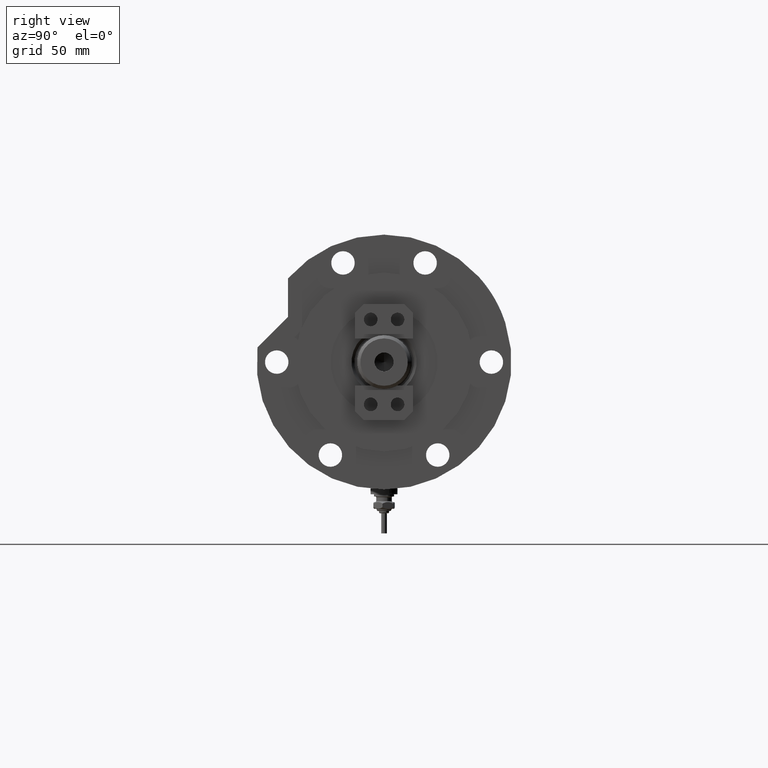
[diagram: clean part render]
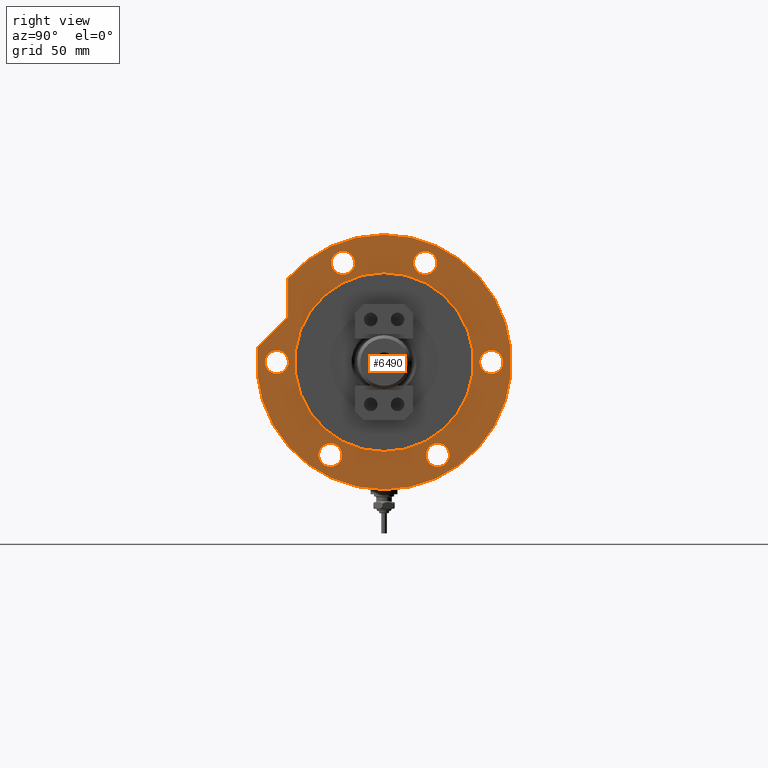
[diagram: same view with one face highlighted and labeled with its STEP entity id]
A machine part, right view. The second image highlights one B-rep face of the part: STEP entity #6490.
In plain terms, the highlighted planar face has unit normal (1, 0, -0).
Its self-contained STEP definition (entity closure, byte-faithful):
#20 = CARTESIAN_POINT ( 'NONE',  ( -57.00000000000000000, 0.000000000000000000, 19.00000000000000000 ) ) ;
#64 = DIRECTION ( 'NONE',  ( 1.000000000000000000, 0.000000000000000000, 0.000000000000000000 ) ) ;
#114 = DIRECTION ( 'NONE',  ( 1.000000000000000000, 0.000000000000000000, 0.000000000000000000 ) ) ;
#204 = FACE_BOUND ( 'NONE', #3351, .T. ) ;
#212 = AXIS2_PLACEMENT_3D ( 'NONE', #4797, #7325, #7237 ) ;
#281 = ORIENTED_EDGE ( 'NONE', *, *, #1066, .F. ) ;
#300 = ORIENTED_EDGE ( 'NONE', *, *, #6311, .T. ) ;
#383 = DIRECTION ( 'NONE',  ( 1.000000000000000000, 0.000000000000000000, 0.000000000000000000 ) ) ;
#440 = EDGE_CURVE ( 'NONE', #6166, #5780, #4897, .T. ) ;
#450 = VERTEX_POINT ( 'NONE', #4670 ) ;
#529 = DIRECTION ( 'NONE',  ( 0.000000000000000000, 0.000000000000000000, 1.000000000000000000 ) ) ;
#599 = AXIS2_PLACEMENT_3D ( 'NONE', #4023, #728, #114 ) ;
#612 = ORIENTED_EDGE ( 'NONE', *, *, #1130, .T. ) ;
#623 = CIRCLE ( 'NONE', #212, 57.00000000000000000 ) ;
#667 = EDGE_LOOP ( 'NONE', ( #959, #2658 ) ) ;
#728 = DIRECTION ( 'NONE',  ( 0.000000000000000000, 0.000000000000000000, 1.000000000000000000 ) ) ;
#868 = PLANE ( 'NONE',  #4383 ) ;
#882 = AXIS2_PLACEMENT_3D ( 'NONE', #4242, #1709, #2931 ) ;
#959 = ORIENTED_EDGE ( 'NONE', *, *, #7911, .F. ) ;
#1066 = EDGE_CURVE ( 'NONE', #2669, #5001, #2988, .T. ) ;
#1130 = EDGE_CURVE ( 'NONE', #1877, #8189, #2176, .T. ) ;
#1172 = EDGE_LOOP ( 'NONE', ( #3552, #5666 ) ) ;
#1185 = DIRECTION ( 'NONE',  ( 0.000000000000000000, 0.000000000000000000, 1.000000000000000000 ) ) ;
#1457 = CARTESIAN_POINT ( 'NONE',  ( 39.09621756054168173, -18.36880475352450048, 19.00000000000000000 ) ) ;
#1484 = CARTESIAN_POINT ( 'NONE',  ( 0.000000000000000000, -48.00000000000000000, 19.00000000000000000 ) ) ;
#1551 = ORIENTED_EDGE ( 'NONE', *, *, #7090, .F. ) ;
#1567 = CARTESIAN_POINT ( 'NONE',  ( -46.81921938165294961, -24.00000000000018829, 19.00000000000000000 ) ) ;
#1598 = CARTESIAN_POINT ( 'NONE',  ( 40.00000000000000000, 4.898587196589413026E-15, 19.00000000000000000 ) ) ;
#1673 = DIRECTION ( 'NONE',  ( 0.000000000000000000, 0.000000000000000000, 1.000000000000000000 ) ) ;
#1683 = CIRCLE ( 'NONE', #8124, 5.249999999999997335 ) ;
#1709 = DIRECTION ( 'NONE',  ( 0.000000000000000000, 0.000000000000000000, 1.000000000000000000 ) ) ;
#1714 = CARTESIAN_POINT ( 'NONE',  ( 0.000000000000000000, 48.00000000000000000, 19.00000000000000000 ) ) ;
#1845 = VERTEX_POINT ( 'NONE', #5744 ) ;
#1877 = VERTEX_POINT ( 'NONE', #5778 ) ;
#1886 = CARTESIAN_POINT ( 'NONE',  ( -5.249999999999998224, 48.00000000000000000, 19.00000000000000000 ) ) ;
#1908 = AXIS2_PLACEMENT_3D ( 'NONE', #1714, #4288, #8148 ) ;
#1947 = AXIS2_PLACEMENT_3D ( 'NONE', #3594, #6147, #383 ) ;
#1959 = ORIENTED_EDGE ( 'NONE', *, *, #5470, .F. ) ;
#1974 = CIRCLE ( 'NONE', #4530, 5.249999999999997335 ) ;
#2028 = CARTESIAN_POINT ( 'NONE',  ( -5.249999999999998224, -48.00000000000000000, 19.00000000000000000 ) ) ;
#2030 = DIRECTION ( 'NONE',  ( 0.000000000000000000, 0.000000000000000000, 1.000000000000000000 ) ) ;
#2106 = VERTEX_POINT ( 'NONE', #2028 ) ;
#2137 = CARTESIAN_POINT ( 'NONE',  ( 57.00000000000000000, 6.980486755139912911E-15, 19.00000000000000000 ) ) ;
#2170 = CARTESIAN_POINT ( 'NONE',  ( 20.20945616129993283, 42.98007820311755012, 19.00000000000000000 ) ) ;
#2176 = CIRCLE ( 'NONE', #3268, 57.00000000000000000 ) ;
#2242 = DIRECTION ( 'NONE',  ( 0.000000000000000000, 0.000000000000000000, 1.000000000000000000 ) ) ;
#2261 = DIRECTION ( 'NONE',  ( 1.000000000000000000, 0.000000000000000000, 0.000000000000000000 ) ) ;
#2270 = CARTESIAN_POINT ( 'NONE',  ( 31.59476718220863845, 31.59476718220895108, 19.00000000000000000 ) ) ;
#2290 = CARTESIAN_POINT ( 'NONE',  ( 49.59621756054168173, -18.36880475352450048, 19.00000000000000000 ) ) ;
#2322 = AXIS2_PLACEMENT_3D ( 'NONE', #3308, #5738, #5860 ) ;
#2495 = CIRCLE ( 'NONE', #3729, 5.249999999999998224 ) ;
#2625 = CIRCLE ( 'NONE', #5453, 40.00000000000000000 ) ;
#2658 = ORIENTED_EDGE ( 'NONE', *, *, #3569, .F. ) ;
#2669 = VERTEX_POINT ( 'NONE', #1886 ) ;
#2769 = FACE_BOUND ( 'NONE', #1172, .T. ) ;
#2813 = VERTEX_POINT ( 'NONE', #2137 ) ;
#2854 = FACE_BOUND ( 'NONE', #3421, .T. ) ;
#2898 = CARTESIAN_POINT ( 'NONE',  ( 44.34621756054168173, -18.36880475352450048, 19.00000000000000000 ) ) ;
#2900 = LINE ( 'NONE', #2270, #5289 ) ;
#2931 = DIRECTION ( 'NONE',  ( 1.000000000000000000, 0.000000000000000000, 0.000000000000000000 ) ) ;
#2950 = CARTESIAN_POINT ( 'NONE',  ( -41.56921938165310593, 23.99999999999990408, 19.00000000000000000 ) ) ;
#2988 = CIRCLE ( 'NONE', #1908, 5.249999999999998224 ) ;
#3023 = CARTESIAN_POINT ( 'NONE',  ( -46.81921938165310593, 23.99999999999990408, 19.00000000000000000 ) ) ;
#3043 = AXIS2_PLACEMENT_3D ( 'NONE', #4399, #1185, #5068 ) ;
#3165 = EDGE_LOOP ( 'NONE', ( #3273, #4970 ) ) ;
#3168 = VECTOR ( 'NONE', #4566, 1000.000000000000000 ) ;
#3268 = AXIS2_PLACEMENT_3D ( 'NONE', #8056, #1673, #4163 ) ;
#3270 = CARTESIAN_POINT ( 'NONE',  ( -41.56921938165294961, -24.00000000000018829, 19.00000000000000000 ) ) ;
#3273 = ORIENTED_EDGE ( 'NONE', *, *, #5595, .F. ) ;
#3308 = CARTESIAN_POINT ( 'NONE',  ( 0.000000000000000000, 0.000000000000000000, 19.00000000000000000 ) ) ;
#3351 = EDGE_LOOP ( 'NONE', ( #281, #6433 ) ) ;
#3421 = EDGE_LOOP ( 'NONE', ( #1551, #6331 ) ) ;
#3445 = CARTESIAN_POINT ( 'NONE',  ( -36.31921938165311303, 23.99999999999990408, 19.00000000000000000 ) ) ;
#3456 = CIRCLE ( 'NONE', #882, 5.249999999999997335 ) ;
#3463 = CIRCLE ( 'NONE', #5049, 5.249999999999998224 ) ;
#3490 = CARTESIAN_POINT ( 'NONE',  ( 0.000000000000000000, 48.00000000000000000, 19.00000000000000000 ) ) ;
#3552 = ORIENTED_EDGE ( 'NONE', *, *, #6624, .F. ) ;
#3556 = DIRECTION ( 'NONE',  ( 1.000000000000000000, 0.000000000000000000, 0.000000000000000000 ) ) ;
#3569 = EDGE_CURVE ( 'NONE', #4433, #1845, #7700, .T. ) ;
#3570 = CIRCLE ( 'NONE', #5708, 5.249999999999997335 ) ;
#3594 = CARTESIAN_POINT ( 'NONE',  ( 0.000000000000000000, -48.00000000000000000, 19.00000000000000000 ) ) ;
#3623 = CARTESIAN_POINT ( 'NONE',  ( 49.59621756054168173, 18.36880475352450048, 19.00000000000000000 ) ) ;
#3729 = AXIS2_PLACEMENT_3D ( 'NONE', #1484, #2030, #5278 ) ;
#3754 = CARTESIAN_POINT ( 'NONE',  ( 0.000000000000000000, 0.000000000000000000, 19.00000000000000000 ) ) ;
#3874 = EDGE_CURVE ( 'NONE', #5780, #6166, #4344, .T. ) ;
#3989 = VERTEX_POINT ( 'NONE', #5565 ) ;
#4016 = DIRECTION ( 'NONE',  ( 0.000000000000000000, 0.000000000000000000, 1.000000000000000000 ) ) ;
#4023 = CARTESIAN_POINT ( 'NONE',  ( 44.34621756054168173, 18.36880475352450048, 19.00000000000000000 ) ) ;
#4063 = DIRECTION ( 'NONE',  ( 0.000000000000000000, 0.000000000000000000, 1.000000000000000000 ) ) ;
#4103 = CARTESIAN_POINT ( 'NONE',  ( 0.000000000000000000, 42.98007820311755012, 19.00000000000000000 ) ) ;
#4158 = DIRECTION ( 'NONE',  ( 1.000000000000000000, 0.000000000000000000, -0.000000000000000000 ) ) ;
#4163 = DIRECTION ( 'NONE',  ( 1.000000000000000000, 0.000000000000000000, 0.000000000000000000 ) ) ;
#4242 = CARTESIAN_POINT ( 'NONE',  ( 44.34621756054168173, -18.36880475352450048, 19.00000000000000000 ) ) ;
#4288 = DIRECTION ( 'NONE',  ( 0.000000000000000000, 0.000000000000000000, 1.000000000000000000 ) ) ;
#4344 = CIRCLE ( 'NONE', #7314, 5.249999999999997335 ) ;
#4383 = AXIS2_PLACEMENT_3D ( 'NONE', #6002, #7366, #4158 ) ;
#4399 = CARTESIAN_POINT ( 'NONE',  ( 44.34621756054168173, 18.36880475352450048, 19.00000000000000000 ) ) ;
#4424 = EDGE_CURVE ( 'NONE', #1877, #4807, #2900, .T. ) ;
#4433 = VERTEX_POINT ( 'NONE', #1598 ) ;
#4530 = AXIS2_PLACEMENT_3D ( 'NONE', #7932, #5465, #2261 ) ;
#4566 = DIRECTION ( 'NONE',  ( 1.000000000000000000, 0.000000000000000000, -0.000000000000000000 ) ) ;
#4629 = DIRECTION ( 'NONE',  ( 1.000000000000000000, 0.000000000000000000, 0.000000000000000000 ) ) ;
#4670 = CARTESIAN_POINT ( 'NONE',  ( 37.43945616129992970, 42.98007820311755012, 19.00000000000000000 ) ) ;
#4703 = FACE_BOUND ( 'NONE', #667, .T. ) ;
#4719 = EDGE_LOOP ( 'NONE', ( #4938, #1959 ) ) ;
#4773 = DIRECTION ( 'NONE',  ( 1.000000000000000000, 0.000000000000000000, 0.000000000000000000 ) ) ;
#4785 = DIRECTION ( 'NONE',  ( 1.000000000000000000, 0.000000000000000000, 0.000000000000000000 ) ) ;
#4791 = AXIS2_PLACEMENT_3D ( 'NONE', #3754, #529, #5124 ) ;
#4795 = FACE_BOUND ( 'NONE', #8024, .T. ) ;
#4797 = CARTESIAN_POINT ( 'NONE',  ( 0.000000000000000000, 0.000000000000000000, 19.00000000000000000 ) ) ;
#4807 = VERTEX_POINT ( 'NONE', #2170 ) ;
#4808 = DIRECTION ( 'NONE',  ( 0.000000000000000000, 0.000000000000000000, 1.000000000000000000 ) ) ;
#4897 = CIRCLE ( 'NONE', #7841, 5.249999999999997335 ) ;
#4938 = ORIENTED_EDGE ( 'NONE', *, *, #6891, .F. ) ;
#4970 = ORIENTED_EDGE ( 'NONE', *, *, #7610, .F. ) ;
#5001 = VERTEX_POINT ( 'NONE', #5582 ) ;
#5049 = AXIS2_PLACEMENT_3D ( 'NONE', #3490, #4016, #4773 ) ;
#5068 = DIRECTION ( 'NONE',  ( 1.000000000000000000, 0.000000000000000000, 0.000000000000000000 ) ) ;
#5124 = DIRECTION ( 'NONE',  ( 1.000000000000000000, 0.000000000000000000, 0.000000000000000000 ) ) ;
#5153 = EDGE_CURVE ( 'NONE', #6277, #6818, #6641, .T. ) ;
#5278 = DIRECTION ( 'NONE',  ( 1.000000000000000000, 0.000000000000000000, 0.000000000000000000 ) ) ;
#5289 = VECTOR ( 'NONE', #5591, 999.9999999999998863 ) ;
#5332 = FACE_OUTER_BOUND ( 'NONE', #6814, .T. ) ;
#5416 = FACE_BOUND ( 'NONE', #3165, .T. ) ;
#5453 = AXIS2_PLACEMENT_3D ( 'NONE', #6716, #4063, #4785 ) ;
#5465 = DIRECTION ( 'NONE',  ( 0.000000000000000000, 0.000000000000000000, 1.000000000000000000 ) ) ;
#5470 = EDGE_CURVE ( 'NONE', #3989, #2106, #8117, .T. ) ;
#5521 = CARTESIAN_POINT ( 'NONE',  ( -41.56921938165310593, 23.99999999999990408, 19.00000000000000000 ) ) ;
#5565 = CARTESIAN_POINT ( 'NONE',  ( 5.249999999999998224, -48.00000000000000000, 19.00000000000000000 ) ) ;
#5582 = CARTESIAN_POINT ( 'NONE',  ( 5.249999999999998224, 48.00000000000000000, 19.00000000000000000 ) ) ;
#5591 = DIRECTION ( 'NONE',  ( 0.7071067811865510144, -0.7071067811865441310, 0.000000000000000000 ) ) ;
#5595 = EDGE_CURVE ( 'NONE', #7327, #7532, #3570, .T. ) ;
#5666 = ORIENTED_EDGE ( 'NONE', *, *, #6079, .F. ) ;
#5708 = AXIS2_PLACEMENT_3D ( 'NONE', #3270, #5779, #64 ) ;
#5738 = DIRECTION ( 'NONE',  ( 0.000000000000000000, 0.000000000000000000, 1.000000000000000000 ) ) ;
#5744 = CARTESIAN_POINT ( 'NONE',  ( -40.00000000000000000, 0.000000000000000000, 19.00000000000000000 ) ) ;
#5778 = CARTESIAN_POINT ( 'NONE',  ( 6.569366352211361004, 56.62016801220598694, 19.00000000000000000 ) ) ;
#5779 = DIRECTION ( 'NONE',  ( 0.000000000000000000, 0.000000000000000000, 1.000000000000000000 ) ) ;
#5780 = VERTEX_POINT ( 'NONE', #3445 ) ;
#5808 = ORIENTED_EDGE ( 'NONE', *, *, #3874, .F. ) ;
#5842 = EDGE_CURVE ( 'NONE', #4807, #450, #7308, .T. ) ;
#5860 = DIRECTION ( 'NONE',  ( 1.000000000000000000, 0.000000000000000000, 0.000000000000000000 ) ) ;
#5885 = ORIENTED_EDGE ( 'NONE', *, *, #4424, .F. ) ;
#5919 = DIRECTION ( 'NONE',  ( 0.000000000000000000, 0.000000000000000000, 1.000000000000000000 ) ) ;
#5985 = CIRCLE ( 'NONE', #4791, 57.00000000000000000 ) ;
#6002 = CARTESIAN_POINT ( 'NONE',  ( 0.000000000000000000, 0.000000000000000000, 19.00000000000000000 ) ) ;
#6008 = ORIENTED_EDGE ( 'NONE', *, *, #7578, .T. ) ;
#6035 = ORIENTED_EDGE ( 'NONE', *, *, #440, .F. ) ;
#6079 = EDGE_CURVE ( 'NONE', #6636, #7531, #1683, .T. ) ;
#6147 = DIRECTION ( 'NONE',  ( 0.000000000000000000, 0.000000000000000000, 1.000000000000000000 ) ) ;
#6166 = VERTEX_POINT ( 'NONE', #3023 ) ;
#6277 = VERTEX_POINT ( 'NONE', #3623 ) ;
#6311 = EDGE_CURVE ( 'NONE', #8189, #2813, #5985, .T. ) ;
#6331 = ORIENTED_EDGE ( 'NONE', *, *, #5153, .F. ) ;
#6433 = ORIENTED_EDGE ( 'NONE', *, *, #8202, .F. ) ;
#6456 = CARTESIAN_POINT ( 'NONE',  ( 39.09621756054168173, 18.36880475352450048, 19.00000000000000000 ) ) ;
#6490 = ADVANCED_FACE ( 'NONE', ( #204, #2854, #2769, #6723, #5416, #4795, #5332, #4703 ), #868, .T. ) ;
#6624 = EDGE_CURVE ( 'NONE', #7531, #6636, #3456, .T. ) ;
#6636 = VERTEX_POINT ( 'NONE', #2290 ) ;
#6641 = CIRCLE ( 'NONE', #599, 5.249999999999997335 ) ;
#6644 = DIRECTION ( 'NONE',  ( 1.000000000000000000, 0.000000000000000000, 0.000000000000000000 ) ) ;
#6684 = CARTESIAN_POINT ( 'NONE',  ( -36.31921938165294961, -24.00000000000018829, 19.00000000000000000 ) ) ;
#6716 = CARTESIAN_POINT ( 'NONE',  ( 0.000000000000000000, 0.000000000000000000, 19.00000000000000000 ) ) ;
#6723 = FACE_BOUND ( 'NONE', #4719, .T. ) ;
#6814 = EDGE_LOOP ( 'NONE', ( #7981, #5885, #612, #300, #6008 ) ) ;
#6818 = VERTEX_POINT ( 'NONE', #6456 ) ;
#6891 = EDGE_CURVE ( 'NONE', #2106, #3989, #2495, .T. ) ;
#7077 = CIRCLE ( 'NONE', #3043, 5.249999999999997335 ) ;
#7090 = EDGE_CURVE ( 'NONE', #6818, #6277, #7077, .T. ) ;
#7237 = DIRECTION ( 'NONE',  ( 1.000000000000000000, 0.000000000000000000, 0.000000000000000000 ) ) ;
#7308 = LINE ( 'NONE', #4103, #3168 ) ;
#7314 = AXIS2_PLACEMENT_3D ( 'NONE', #5521, #2242, #3556 ) ;
#7325 = DIRECTION ( 'NONE',  ( 0.000000000000000000, 0.000000000000000000, 1.000000000000000000 ) ) ;
#7327 = VERTEX_POINT ( 'NONE', #1567 ) ;
#7366 = DIRECTION ( 'NONE',  ( 0.000000000000000000, 0.000000000000000000, 1.000000000000000000 ) ) ;
#7531 = VERTEX_POINT ( 'NONE', #1457 ) ;
#7532 = VERTEX_POINT ( 'NONE', #6684 ) ;
#7578 = EDGE_CURVE ( 'NONE', #2813, #450, #623, .T. ) ;
#7610 = EDGE_CURVE ( 'NONE', #7532, #7327, #1974, .T. ) ;
#7700 = CIRCLE ( 'NONE', #2322, 40.00000000000000000 ) ;
#7841 = AXIS2_PLACEMENT_3D ( 'NONE', #2950, #5919, #4629 ) ;
#7911 = EDGE_CURVE ( 'NONE', #1845, #4433, #2625, .T. ) ;
#7932 = CARTESIAN_POINT ( 'NONE',  ( -41.56921938165294961, -24.00000000000018829, 19.00000000000000000 ) ) ;
#7981 = ORIENTED_EDGE ( 'NONE', *, *, #5842, .F. ) ;
#8024 = EDGE_LOOP ( 'NONE', ( #6035, #5808 ) ) ;
#8056 = CARTESIAN_POINT ( 'NONE',  ( 0.000000000000000000, 0.000000000000000000, 19.00000000000000000 ) ) ;
#8117 = CIRCLE ( 'NONE', #1947, 5.249999999999998224 ) ;
#8124 = AXIS2_PLACEMENT_3D ( 'NONE', #2898, #4808, #6644 ) ;
#8148 = DIRECTION ( 'NONE',  ( 1.000000000000000000, 0.000000000000000000, 0.000000000000000000 ) ) ;
#8189 = VERTEX_POINT ( 'NONE', #20 ) ;
#8202 = EDGE_CURVE ( 'NONE', #5001, #2669, #3463, .T. ) ;